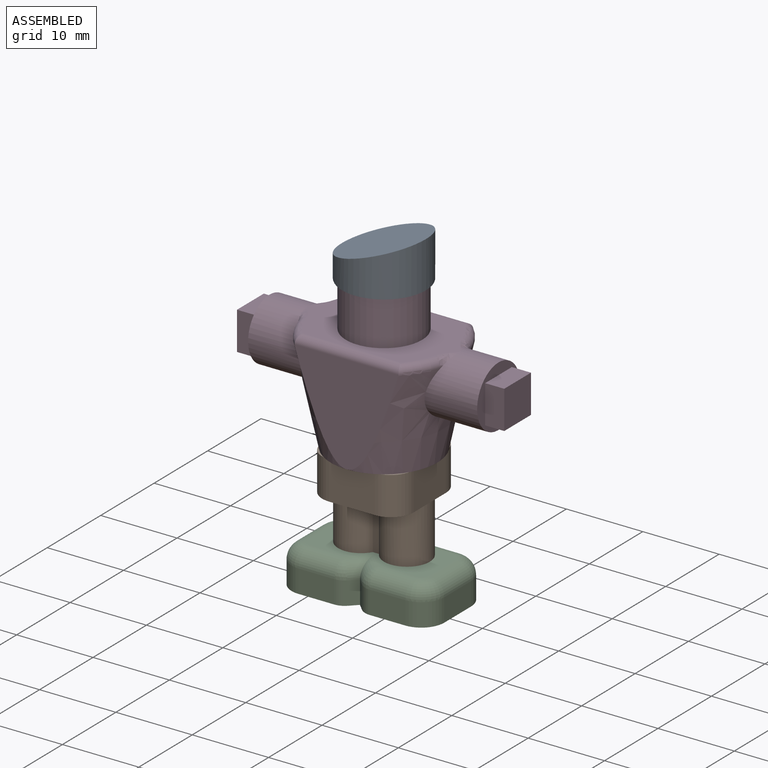
[diagram: assembled view]
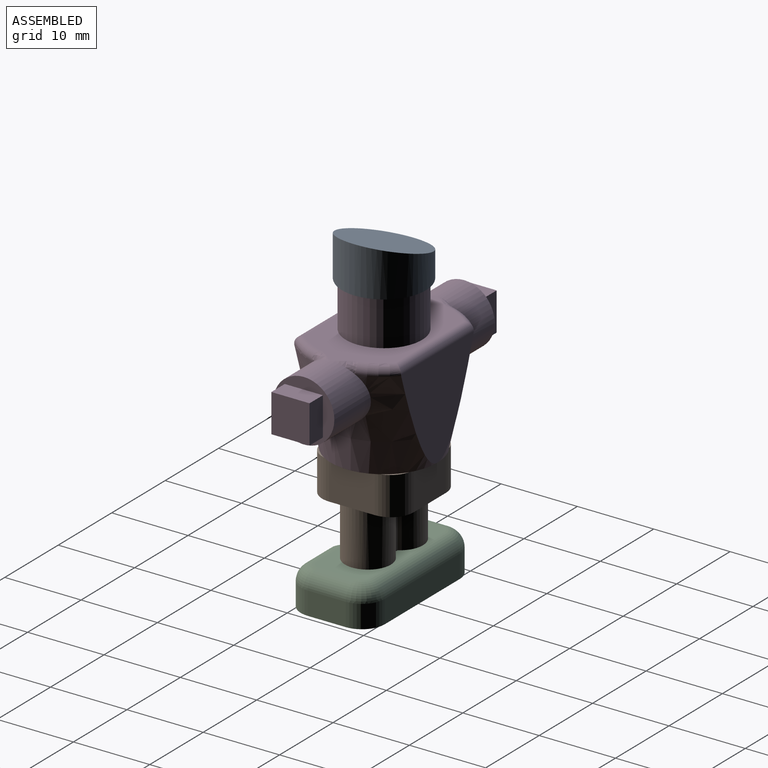
[diagram: assembled view, second angle]
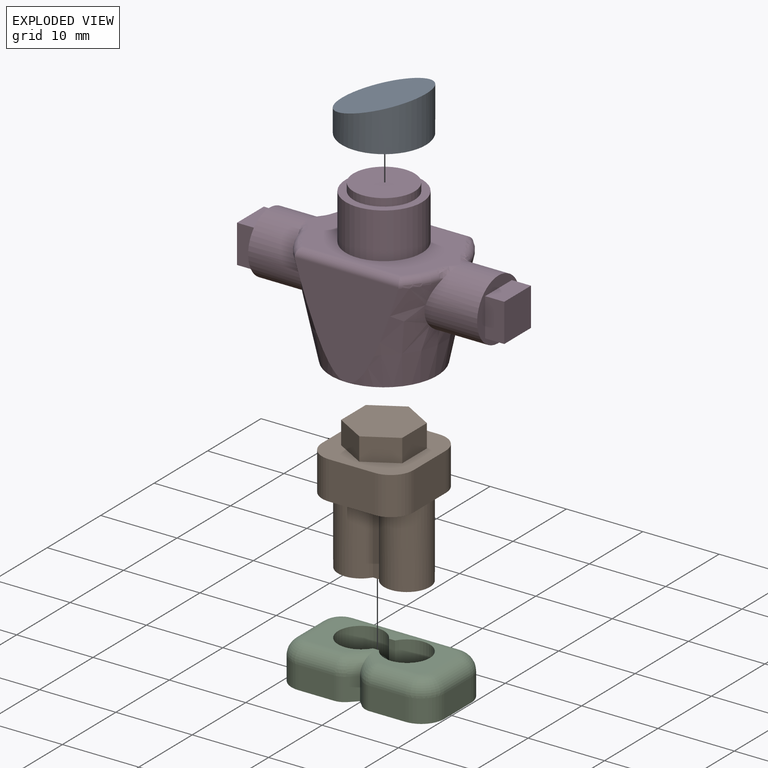
[diagram: exploded view]
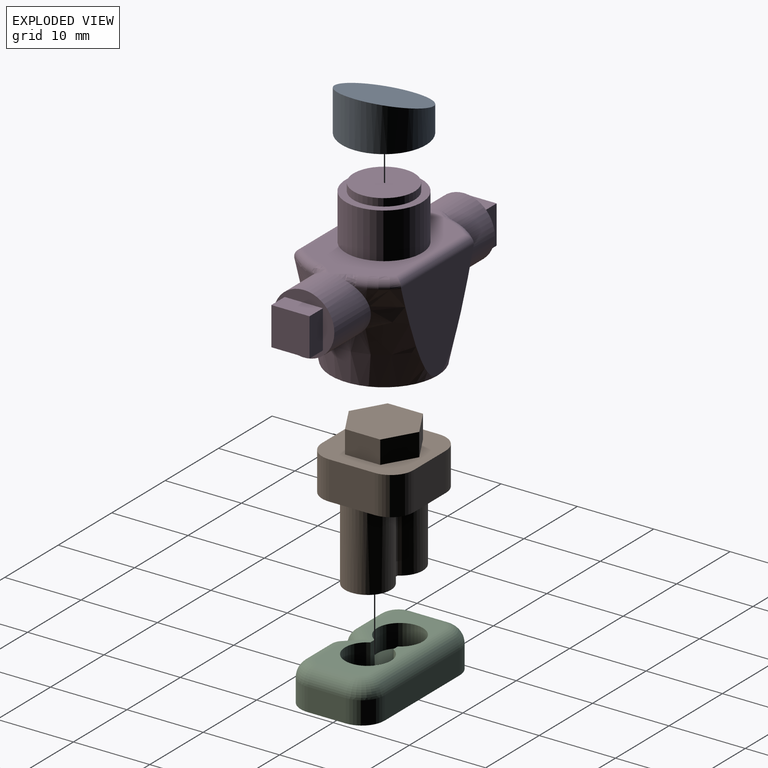
[diagram: exploded view, second angle]
ASSEMBLY  parts=4 mates=3
PART A: 5 faces, bbox 11x11x6.1 mm
  f0: cylinder r=5.5mm len=11mm, axis (0,0,1), area 150.8mm2, adj f1,f4
  f1: plane 11x11mm, normal (0,0,-1), area 44.8mm2, adj f0,f2
  f2: cylinder r=4mm len=8mm, axis (0,0,1), area 25.1mm2, adj f1,f3
  f3: plane 8x8mm, normal (0,0,-1), area 50.3mm2, adj f2
  f4: plane 11x11mm, normal (-0.3,0,0.96), area 99.5mm2, adj f0
PART B: 23 faces, bbox 12x12x18 mm
  f0: plane 12x6mm, normal (0,0,-1), area 39.5mm2, adj f1,f3,f6,f15,f16,f18,f19,f21
  f1: plane 6x5mm, normal (-1,0,0), area 30mm2, adj f0,f2,f4,f14,f15
  f2: plane 12x12mm, normal (0,0,1), area 80.8mm2, adj f1,f3,f5,f6,f7,f8,f9,f10
  f3: plane 6x5mm, normal (1,0,0), area 30mm2, adj f0,f2,f4,f16,f17
  f4: plane 12x6mm, normal (0,0,-1), area 39.5mm2, adj f1,f3,f5,f14,f17,f19,f20,f21
  f5: plane 6x5mm, normal (0,-1,0), area 30mm2, adj f2,f4,f14,f17
  f6: plane 6x5mm, normal (0,1,0), area 30mm2, adj f0,f2,f15,f16
  f7: plane 4.62x3mm, normal (1,0,0), area 13.9mm2, adj f2,f8,f12,f13
  f8: plane 4x3mm, normal (0.5,0.87,0), area 13.9mm2, adj f2,f7,f9,f13
  f9: plane 4x3mm, normal (-0.5,0.87,0), area 13.9mm2, adj f2,f8,f10,f13
  f10: plane 4.62x3mm, normal (-1,0,0), area 13.9mm2, adj f2,f9,f11,f13
  f11: plane 4x3mm, normal (-0.5,-0.87,0), area 13.9mm2, adj f2,f10,f12,f13
  f12: plane 4x3mm, normal (0.5,-0.87,0), area 13.9mm2, adj f2,f7,f11,f13
  f13: plane 9.24x8mm, normal (0,0,1), area 55.4mm2, adj f7,f8,f9,f10,f11,f12
  f14: cylinder r=3mm len=5mm, axis (0,0,-1), area 23.6mm2, adj f1,f2,f4,f5
  f15: cylinder r=3mm len=5mm, axis (0,0,1), area 23.6mm2, adj f0,f1,f2,f6
  f16: cylinder r=3mm len=5mm, axis (0,0,-1), area 23.6mm2, adj f0,f2,f3,f6
  f17: cylinder r=3mm len=5mm, axis (0,0,1), area 23.6mm2, adj f2,f3,f4,f5
  f18: plane 10x0.8mm, normal (0,1,0), area 8mm2, adj f0,f19,f21,f22
  f19: cylinder r=3mm len=10mm, axis (0,0,1), area 157.1mm2, adj f0,f4,f18,f20,f22
  f20: plane 10x0.8mm, normal (0,-1,0), area 8mm2, adj f4,f19,f21,f22
  f21: cylinder r=3mm len=10mm, axis (0,0,1), area 157.1mm2, adj f0,f4,f18,f20,f22
  f22: plane 12x6mm, normal (0,0,-1), area 57.3mm2, adj f18,f19,f20,f21
PART C: 34 faces, bbox 20x11x5 mm
  f0: plane 16x7mm, normal (0,0,1), area 44.9mm2, adj f8,f10,f11,f21,f22,f23,f24,f25
  f1: plane 6x1.5mm, normal (0,0,1), area 3.5mm2, adj f8,f9,f10,f23
  f2: plane 20x11mm, normal (0,0,-1), area 209.9mm2, adj f3,f4,f5,f6,f7,f13,f14,f15
  f3: plane 4.67x3mm, normal (0,-1,0), area 14mm2, adj f2,f18,f20,f26
  f4: plane 5x3mm, normal (-1,0,0), area 15mm2, adj f2,f15,f16,f27
  f5: plane 5x3mm, normal (1,0,0), area 15mm2, adj f2,f17,f18,f22
  f6: plane 14x3mm, normal (0,1,0), area 42mm2, adj f2,f16,f17,f23
  f7: plane 4.67x3mm, normal (0,-1,0), area 14mm2, adj f2,f15,f19,f31
  f8: cylinder r=3mm len=6mm, axis (0,0,1), area 47.1mm2, adj f0,f1,f9,f11,f12
  f9: plane 3x0.8mm, normal (0,-1,0), area 2.4mm2, adj f1,f8,f10,f12
  f10: cylinder r=3mm len=6mm, axis (0,0,1), area 47.1mm2, adj f0,f1,f9,f11,f12
  f11: plane 3x0.8mm, normal (0,1,0), area 2.4mm2, adj f0,f8,f10,f12
  f12: plane 12x6mm, normal (0,0,1), area 57.3mm2, adj f8,f9,f10,f11
  f13: plane 3x0.91mm, normal (-0.71,-0.71,0), area 3.9mm2, adj f2,f14,f20,f30
  f14: plane 3x0.91mm, normal (0.71,-0.71,0), area 3.9mm2, adj f2,f13,f19,f32
  f15: cylinder r=3mm len=3mm, axis (0,0,1), area 14.1mm2, adj f2,f4,f7,f29
  f16: cylinder r=3mm len=3mm, axis (0,0,-1), area 14.1mm2, adj f2,f4,f6,f25
  f17: cylinder r=3mm len=3mm, axis (0,0,1), area 14.1mm2, adj f2,f5,f6,f21
  f18: cylinder r=3mm len=3mm, axis (0,0,-1), area 14.1mm2, adj f2,f3,f5,f24
  f19: cylinder r=2mm len=3mm, axis (0,0,-1), area 4.7mm2, adj f2,f7,f14,f33
  f20: cylinder r=2mm len=3mm, axis (0,0,-1), area 4.7mm2, adj f2,f3,f13,f28
  f21: torus R=1mm, axis (0,0,-1), area 11.2mm2, adj f0,f17,f22,f23
  f22: cylinder r=2mm len=5mm, axis (0,-1,0), area 15.7mm2, adj f0,f5,f21,f24
  f23: cylinder r=2mm len=14mm, axis (-1,0,0), area 44mm2, adj f0,f1,f6,f21,f25
  f24: torus R=1mm, axis (0,0,-1), area 11.2mm2, adj f0,f18,f22,f26
  f25: torus R=1mm, axis (0,0,-1), area 11.2mm2, adj f0,f16,f23,f27
  f26: cylinder r=2mm len=4.67mm, axis (1,0,0), area 14.7mm2, adj f0,f3,f24,f28
  f27: cylinder r=2mm len=5mm, axis (0,-1,0), area 15.7mm2, adj f0,f4,f25,f29
  f28: sphere r=2mm, area 3.1mm2, adj f20,f26,f30
  f29: torus R=1mm, axis (0,0,-1), area 11.2mm2, adj f0,f15,f27,f31
  f30: cylinder r=2mm len=3.74mm, axis (-0.71,0.71,0), area 6.3mm2, adj f0,f13,f28,f32
  f31: cylinder r=2mm len=4.67mm, axis (1,0,0), area 14.7mm2, adj f0,f7,f29,f33
  f32: cylinder r=2mm len=3.74mm, axis (-0.71,-0.71,0), area 6.3mm2, adj f0,f14,f30,f33
  f33: sphere r=2mm, area 3.1mm2, adj f19,f31,f32
PART D: 41 faces, bbox 38.3x22.8x24.3 mm
  f0: plane 20.61x12.61mm, normal (0,0,1), area 119mm2, adj f3,f24,f25,f26,f27,f28,f29,f30
  f1: cone r=7mm half-angle=12.1deg, axis (0,0,1), area 207.4mm2, adj f7,f8,f9,f12,f26,f32
  f2: cone r=7mm half-angle=12.1deg, axis (0,0,1), area 207.4mm2, adj f7,f8,f9,f11,f27,f30
  f3: cylinder r=5mm len=10mm, axis (0,0,1), area 188.5mm2, adj f0,f4
  f4: plane 10x10mm, normal (0,0,1), area 28.3mm2, adj f3,f5
  f5: cylinder r=4mm len=8mm, axis (0,0,1), area 25.1mm2, adj f4,f6
  f6: plane 8x8mm, normal (0,0,1), area 50.3mm2, adj f5
  f7: plane 14x14mm, normal (0,0,-1), area 98.5mm2, adj f1,f2,f34,f35,f36,f37,f38,f39
  f8: plane 16.94x16.33mm, normal (0,-1,0), area 114.5mm2, adj f1,f2,f26,f27,f28
  f9: plane 16.94x16.33mm, normal (0,1,0), area 114.5mm2, adj f1,f2,f30,f31,f32
  f10: plane 8x8mm, normal (-1,0,0), area 25.3mm2, adj f11,f19,f20,f21,f22
  f11: cylinder r=4mm len=8mm, axis (-1,0,0), area 140.8mm2, adj f2,f10,f25,f29
  f12: cylinder r=4mm len=8mm, axis (-1,0,0), area 140.8mm2, adj f1,f13,f24,f33
  f13: plane 8x8mm, normal (1,0,0), area 25.3mm2, adj f12,f15,f16,f17,f18
  f14: plane 5x5mm, normal (1,0,0), area 25mm2, adj f15,f16,f17,f18
  f15: plane 5x2.5mm, normal (0,0,-1), area 12.5mm2, adj f13,f14,f16,f18
  f16: plane 5x2.5mm, normal (0,1,0), area 12.5mm2, adj f13,f14,f15,f17
  f17: plane 5x2.5mm, normal (0,0,1), area 12.5mm2, adj f13,f14,f16,f18
  f18: plane 5x2.5mm, normal (0,-1,0), area 12.5mm2, adj f13,f14,f15,f17
  f19: plane 5x2.5mm, normal (0,-1,0), area 12.5mm2, adj f10,f20,f22,f23
  f20: plane 5x2.5mm, normal (0,0,1), area 12.5mm2, adj f10,f19,f21,f23
  f21: plane 5x2.5mm, normal (0,1,0), area 12.5mm2, adj f10,f20,f22,f23
  f22: plane 5x2.5mm, normal (0,0,-1), area 12.5mm2, adj f10,f19,f21,f23
  f23: plane 5x5mm, normal (-1,0,0), area 25mm2, adj f19,f20,f21,f22
  f24: bspline ~3.08x1.69mm, area 1.6mm2, adj f0,f12,f26
  f25: bspline ~3.08x1.7mm, area 1.6mm2, adj f0,f11,f27
  f26: torus R=8.76mm, axis (0,0,-1), area 8.1mm2, adj f0,f1,f8,f24,f28
  f27: torus R=8.76mm, axis (0,0,-1), area 8.1mm2, adj f0,f2,f8,f25,f28
  f28: cylinder r=1mm len=13.61mm, axis (1,0,0), area 20.7mm2, adj f0,f8,f26,f27
  f29: bspline ~3.08x1.69mm, area 1.6mm2, adj f0,f11,f30
  f30: torus R=8.76mm, axis (0,0,-1), area 8.1mm2, adj f0,f2,f9,f29,f31
  f31: cylinder r=1mm len=13.61mm, axis (-1,0,0), area 20.7mm2, adj f0,f9,f30,f32
  f32: torus R=8.76mm, axis (0,0,-1), area 8.1mm2, adj f0,f1,f9,f31,f33
  f33: bspline ~3.08x1.7mm, area 1.6mm2, adj f0,f12,f32
  f34: plane 4.62x3mm, normal (1,0,0), area 13.9mm2, adj f7,f35,f39,f40
  f35: plane 4x3mm, normal (0.5,-0.87,0), area 13.9mm2, adj f7,f34,f36,f40
  f36: plane 4x3mm, normal (-0.5,-0.87,0), area 13.9mm2, adj f7,f35,f37,f40
  f37: plane 4.62x3mm, normal (-1,0,0), area 13.9mm2, adj f7,f36,f38,f40
  f38: plane 4x3mm, normal (-0.5,0.87,0), area 13.9mm2, adj f7,f37,f39,f40
  f39: plane 4x3mm, normal (0.5,0.87,0), area 13.9mm2, adj f7,f34,f38,f40
  f40: plane 9.24x8mm, normal (0,0,-1), area 55.4mm2, adj f34,f35,f36,f37,f38,f39
PLACE A t=(-9.1,0.31,17.6)mm
PLACE B t=(-9.1,0.31,-4.9)mm
PLACE C t=(-9.1,0.31,-16.9)mm
PLACE D t=(-9.1,0.31,7.6)mm
MATE fastened A.f0 <-> D.f3  axis (0,0,-1) through (-9.1,0.31,18.6)mm
MATE fastened C.f10 <-> B.f21  axis (0,0,1) through (-6.1,0.31,-17.4)mm
MATE fastened B.f13 <-> D.f3  axis (0,0,1) through (-9.1,0.31,0.6)mm
